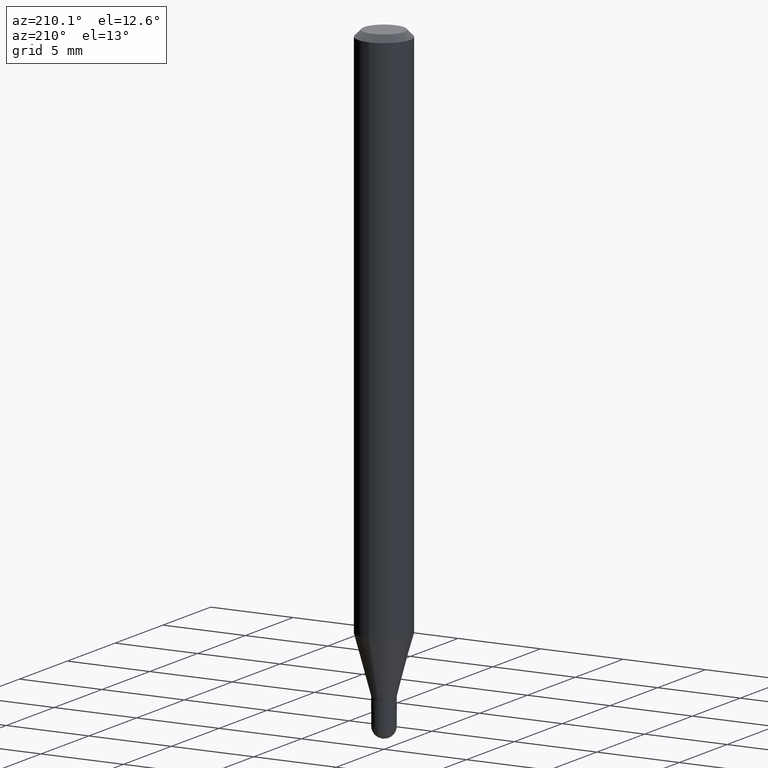
[diagram: clean part render]
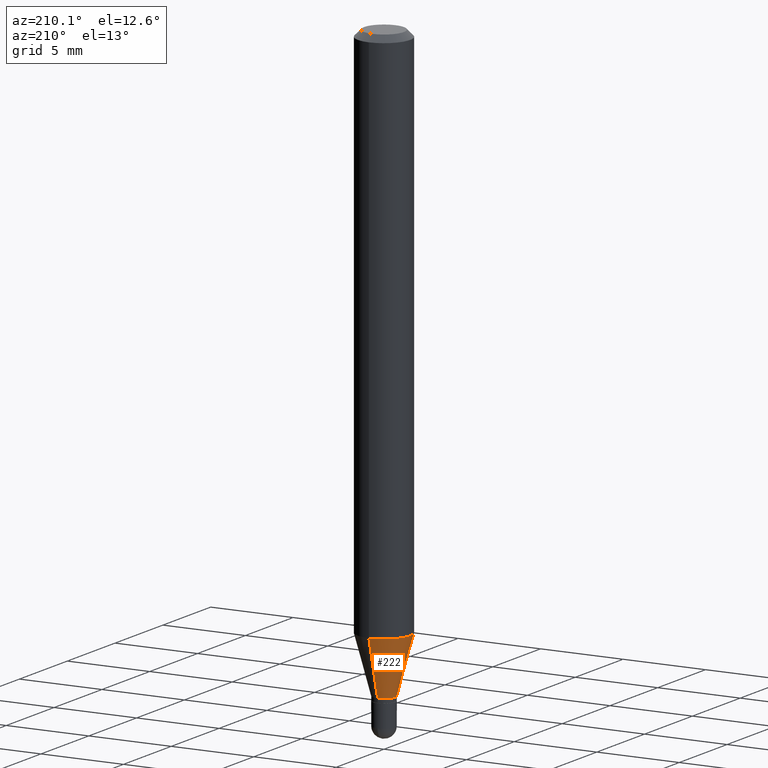
[diagram: same view with one face highlighted and labeled with its STEP entity id]
A machine part, auxiliary view. The second image highlights one B-rep face of the part: STEP entity #222.
In plain terms, the highlighted conical surface has half-angle 15 deg.
Its self-contained STEP definition (entity closure, byte-faithful):
#9 = CARTESIAN_POINT ( 'NONE',  ( -1.850485109586510286E-16, -0.02650000000000484607, -1.409999999999999920 ) ) ;
#29 = ORIENTED_EDGE ( 'NONE', *, *, #400, .F. ) ;
#37 = VERTEX_POINT ( 'NONE', #9 ) ;
#49 = CIRCLE ( 'NONE', #335, 0.06250000000000000000 ) ;
#52 = EDGE_CURVE ( 'NONE', #37, #510, #357, .T. ) ;
#57 = CIRCLE ( 'NONE', #147, 0.02649999999999992639 ) ;
#107 = DIRECTION ( 'NONE',  ( -6.982962677686265133E-15, -1.000000000000000000, 0.000000000000000000 ) ) ;
#110 = EDGE_CURVE ( 'NONE', #148, #417, #158, .T. ) ;
#112 = FACE_OUTER_BOUND ( 'NONE', #434, .T. ) ;
#115 = CONICAL_SURFACE ( 'NONE', #330, 0.02649999999999992639, 0.2617993877991506291 ) ;
#130 = EDGE_CURVE ( 'NONE', #148, #37, #57, .T. ) ;
#145 = DIRECTION ( 'NONE',  ( -2.445481784705072180E-29, 3.491462752863906305E-15, 1.000000000000000000 ) ) ;
#147 = AXIS2_PLACEMENT_3D ( 'NONE', #500, #344, #107 ) ;
#148 = VERTEX_POINT ( 'NONE', #462 ) ;
#158 = LINE ( 'NONE', #416, #290 ) ;
#187 = DIRECTION ( 'NONE',  ( -2.445481784705072180E-29, 3.491462752863906305E-15, 1.000000000000000000 ) ) ;
#222 = ADVANCED_FACE ( 'NONE', ( #112 ), #115, .T. ) ;
#228 = DIRECTION ( 'NONE',  ( -6.982962677686265133E-15, -1.000000000000000000, 0.000000000000000000 ) ) ;
#232 = CARTESIAN_POINT ( 'NONE',  ( 3.119569474732024793E-29, -4.453871091626903081E-15, -1.275646170927520862 ) ) ;
#241 = CARTESIAN_POINT ( 'NONE',  ( 4.440892098500934804E-16, 0.06249999999999551747, -1.275646170927521084 ) ) ;
#246 = DIRECTION ( 'NONE',  ( -6.982962677686265922E-15, -1.000000000000000000, 4.370956789862821150E-15 ) ) ;
#251 = CARTESIAN_POINT ( 'NONE',  ( -4.364351673553605587E-16, -0.06250000000000446865, -1.275646170927520417 ) ) ;
#270 = CARTESIAN_POINT ( 'NONE',  ( 3.448129316434151668E-29, -4.922962481538108544E-15, -1.409999999999999920 ) ) ;
#279 = ORIENTED_EDGE ( 'NONE', *, *, #110, .F. ) ;
#290 = VECTOR ( 'NONE', #351, 39.37007874015748143 ) ;
#297 = VECTOR ( 'NONE', #471, 39.37007874015748854 ) ;
#330 = AXIS2_PLACEMENT_3D ( 'NONE', #270, #145, #228 ) ;
#335 = AXIS2_PLACEMENT_3D ( 'NONE', #232, #187, #246 ) ;
#344 = DIRECTION ( 'NONE',  ( -2.445481784705072180E-29, 3.491462752863906305E-15, 1.000000000000000000 ) ) ;
#351 = DIRECTION ( 'NONE',  ( 1.839019923739602682E-15, 0.2588190451025252914, 0.9659258262890670910 ) ) ;
#357 = LINE ( 'NONE', #509, #297 ) ;
#400 = EDGE_CURVE ( 'NONE', #417, #510, #49, .T. ) ;
#416 = CARTESIAN_POINT ( 'NONE',  ( 1.882938249764604649E-16, 0.02649999999999500325, -1.409999999999999920 ) ) ;
#417 = VERTEX_POINT ( 'NONE', #241 ) ;
#434 = EDGE_LOOP ( 'NONE', ( #279, #468, #474, #29 ) ) ;
#462 = CARTESIAN_POINT ( 'NONE',  ( 3.161915174132772068E-16, 0.02649999999999500325, -1.409999999999999920 ) ) ;
#468 = ORIENTED_EDGE ( 'NONE', *, *, #130, .T. ) ;
#471 = DIRECTION ( 'NONE',  ( -1.807323732225332900E-15, -0.2588190451025185190, 0.9659258262890689783 ) ) ;
#474 = ORIENTED_EDGE ( 'NONE', *, *, #52, .T. ) ;
#500 = CARTESIAN_POINT ( 'NONE',  ( 3.448129316434151668E-29, -4.922962481538108544E-15, -1.409999999999999920 ) ) ;
#509 = CARTESIAN_POINT ( 'NONE',  ( -1.850485109586510286E-16, -0.02650000000000484607, -1.409999999999999920 ) ) ;
#510 = VERTEX_POINT ( 'NONE', #251 ) ;